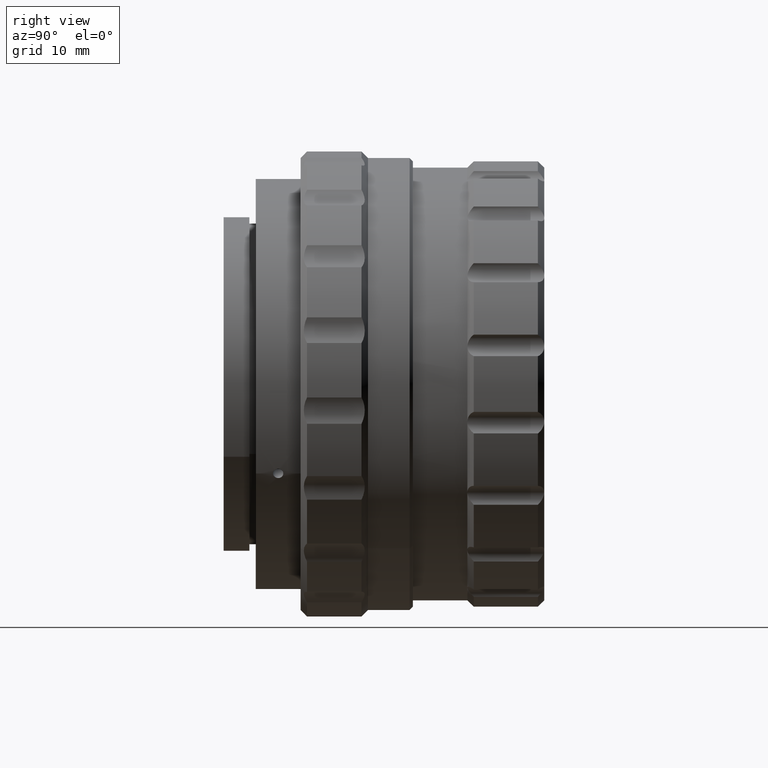
[diagram: clean part render]
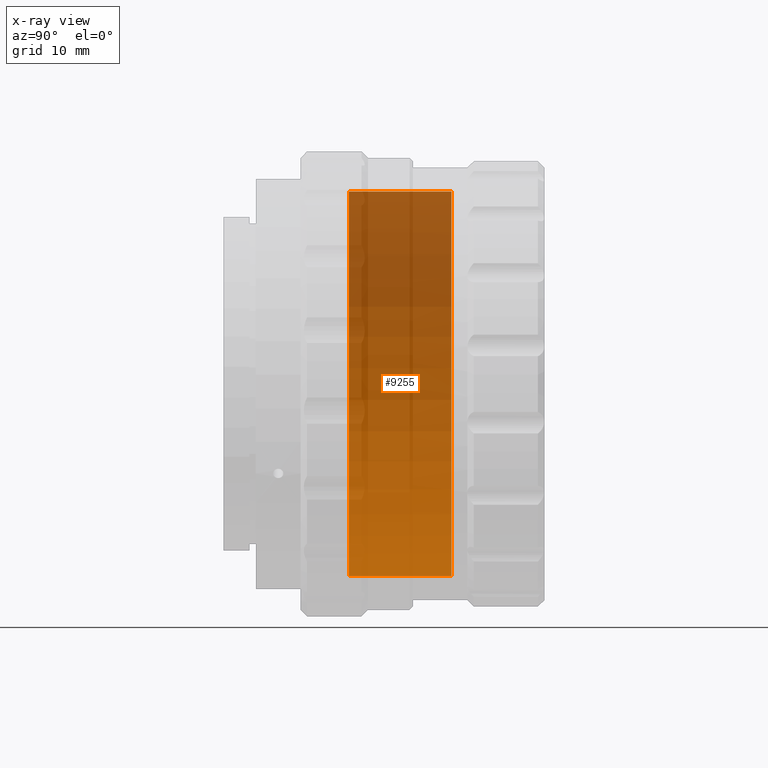
[diagram: x-ray — body ghosted, one internal face saturated and labeled with its STEP entity id]
A machine part, right view, then the same camera in x-ray: the body is ghosted and one INTERNAL B-rep face — a face not visible from any outside direction — is saturated and labeled: STEP entity #9255.
In plain terms, the highlighted cylindrical surface (partial cylindrical patch) has radius 30 mm, axis along (-0, -1, -0).
Its self-contained STEP definition (entity closure, byte-faithful):
#206 = FACE_OUTER_BOUND ( 'NONE', #10311, .T. ) ;
#283 = AXIS2_PLACEMENT_3D ( 'NONE', #1069, #1180, #3604 ) ;
#1069 = CARTESIAN_POINT ( 'NONE',  ( 5.971701014312827738, -20.54875568700542132, 44.90330644533106863 ) ) ;
#1180 = DIRECTION ( 'NONE',  ( -0.000000000000000000, -1.000000000000000000, -0.000000000000000000 ) ) ;
#1572 = LINE ( 'NONE', #2376, #2460 ) ;
#1626 = CARTESIAN_POINT ( 'NONE',  ( 5.971701014312831290, -20.54875568700542132, 74.90330644533106863 ) ) ;
#1777 = ORIENTED_EDGE ( 'NONE', *, *, #2384, .F. ) ;
#2052 = AXIS2_PLACEMENT_3D ( 'NONE', #7773, #6867, #5279 ) ;
#2190 = EDGE_CURVE ( 'NONE', #3144, #6409, #8904, .T. ) ;
#2205 = CARTESIAN_POINT ( 'NONE',  ( 5.971701014312827738, 0.4512443129945815645, 14.90330644533106508 ) ) ;
#2376 = CARTESIAN_POINT ( 'NONE',  ( 5.971701014312827738, -20.54875568700542132, 14.90330644533106863 ) ) ;
#2384 = EDGE_CURVE ( 'NONE', #9247, #4167, #6857, .T. ) ;
#2460 = VECTOR ( 'NONE', #6451, 1000.000000000000000 ) ;
#3144 = VERTEX_POINT ( 'NONE', #6148 ) ;
#3188 = LINE ( 'NONE', #1626, #6738 ) ;
#3604 = DIRECTION ( 'NONE',  ( 0.000000000000000000, 0.000000000000000000, -1.000000000000000000 ) ) ;
#4167 = VERTEX_POINT ( 'NONE', #6253 ) ;
#4819 = AXIS2_PLACEMENT_3D ( 'NONE', #8309, #5619, #8866 ) ;
#5014 = DIRECTION ( 'NONE',  ( -0.000000000000000000, -1.000000000000000000, -0.000000000000000000 ) ) ;
#5020 = ORIENTED_EDGE ( 'NONE', *, *, #6802, .F. ) ;
#5279 = DIRECTION ( 'NONE',  ( 0.000000000000000000, 0.000000000000000000, -1.000000000000000000 ) ) ;
#5619 = DIRECTION ( 'NONE',  ( -0.000000000000000000, -1.000000000000000000, -0.000000000000000000 ) ) ;
#6148 = CARTESIAN_POINT ( 'NONE',  ( 5.971701014312831290, 0.4512443129945815645, 74.90330644533108284 ) ) ;
#6253 = CARTESIAN_POINT ( 'NONE',  ( 5.971701014312827738, -15.54875568700541955, 14.90330644533106863 ) ) ;
#6409 = VERTEX_POINT ( 'NONE', #2205 ) ;
#6451 = DIRECTION ( 'NONE',  ( -0.000000000000000000, -1.000000000000000000, -0.000000000000000000 ) ) ;
#6738 = VECTOR ( 'NONE', #5014, 1000.000000000000000 ) ;
#6802 = EDGE_CURVE ( 'NONE', #3144, #9247, #3188, .T. ) ;
#6857 = CIRCLE ( 'NONE', #2052, 30.00000000000000000 ) ;
#6867 = DIRECTION ( 'NONE',  ( -0.000000000000000000, -1.000000000000000000, -0.000000000000000000 ) ) ;
#7615 = CARTESIAN_POINT ( 'NONE',  ( 5.971701014312831290, -15.54875568700541955, 74.90330644533106863 ) ) ;
#7668 = CYLINDRICAL_SURFACE ( 'NONE', #283, 30.00000000000000000 ) ;
#7773 = CARTESIAN_POINT ( 'NONE',  ( 5.971701014312827738, -15.54875568700541955, 44.90330644533106863 ) ) ;
#8237 = ORIENTED_EDGE ( 'NONE', *, *, #10138, .T. ) ;
#8309 = CARTESIAN_POINT ( 'NONE',  ( 5.971701014312827738, 0.4512443129945815645, 44.90330644533106863 ) ) ;
#8866 = DIRECTION ( 'NONE',  ( 0.000000000000000000, 0.000000000000000000, -1.000000000000000000 ) ) ;
#8904 = CIRCLE ( 'NONE', #4819, 30.00000000000000355 ) ;
#9247 = VERTEX_POINT ( 'NONE', #7615 ) ;
#9255 = ADVANCED_FACE ( 'NONE', ( #206 ), #7668, .T. ) ;
#9406 = ORIENTED_EDGE ( 'NONE', *, *, #2190, .T. ) ;
#10138 = EDGE_CURVE ( 'NONE', #6409, #4167, #1572, .T. ) ;
#10311 = EDGE_LOOP ( 'NONE', ( #5020, #9406, #8237, #1777 ) ) ;